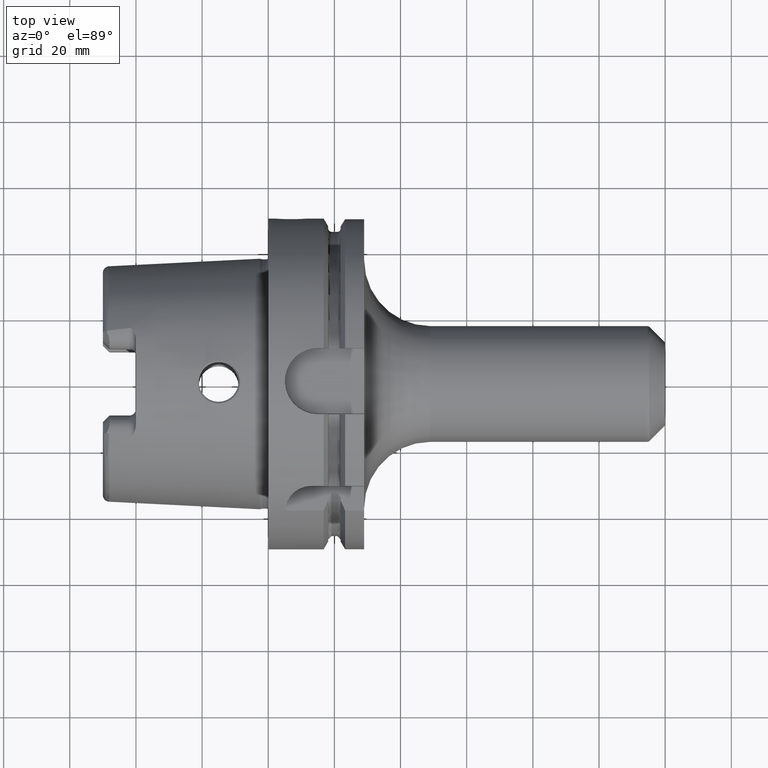
[diagram: clean part render]
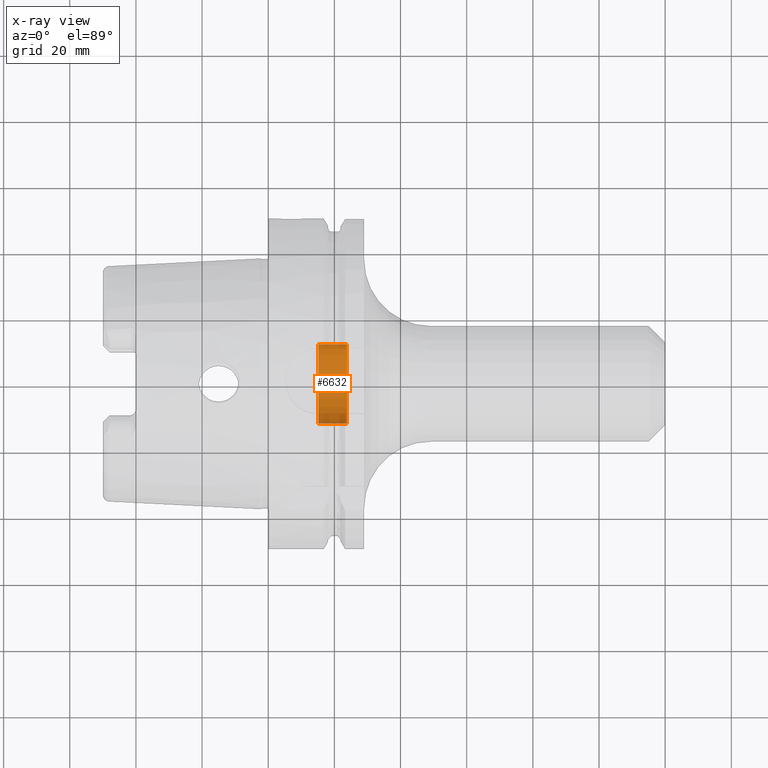
[diagram: x-ray — body ghosted, one internal face saturated and labeled with its STEP entity id]
A machine part, top view, then the same camera in x-ray: the body is ghosted and one INTERNAL B-rep face — a face not visible from any outside direction — is saturated and labeled: STEP entity #6632.
In plain terms, the highlighted cylindrical surface (partial cylindrical patch) has radius 12 mm, axis along (1, 0, 0).
Its self-contained STEP definition (entity closure, byte-faithful):
#6545=CARTESIAN_POINT('',(1.51625E1,0.E0,0.E0));
#6546=DIRECTION('',(1.E0,0.E0,0.E0));
#6547=DIRECTION('',(0.E0,-1.E0,0.E0));
#6548=AXIS2_PLACEMENT_3D('',#6545,#6546,#6547);
#6550=CARTESIAN_POINT('',(2.385262794416E1,0.E0,0.E0));
#6551=DIRECTION('',(-1.E0,0.E0,0.E0));
#6552=DIRECTION('',(0.E0,1.E0,0.E0));
#6553=AXIS2_PLACEMENT_3D('',#6550,#6551,#6552);
#6570=DIRECTION('',(-1.E0,0.E0,0.E0));
#6571=VECTOR('',#6570,8.690127944163E0);
#6572=CARTESIAN_POINT('',(2.385262794416E1,-1.2E1,0.E0));
#6573=LINE('',#6572,#6571);
#6579=DIRECTION('',(-1.E0,0.E0,0.E0));
#6580=VECTOR('',#6579,8.690127944163E0);
#6581=CARTESIAN_POINT('',(2.385262794416E1,1.2E1,0.E0));
#6582=LINE('',#6581,#6580);
#6605=CARTESIAN_POINT('',(1.51625E1,-1.2E1,0.E0));
#6606=CARTESIAN_POINT('',(1.51625E1,1.2E1,0.E0));
#6607=VERTEX_POINT('',#6605);
#6608=VERTEX_POINT('',#6606);
#6609=CARTESIAN_POINT('',(2.385262794416E1,-1.2E1,0.E0));
#6610=CARTESIAN_POINT('',(2.385262794416E1,1.2E1,0.E0));
#6611=VERTEX_POINT('',#6609);
#6612=VERTEX_POINT('',#6610);
#6617=CARTESIAN_POINT('',(-4.847666062263E0,0.E0,0.E0));
#6618=DIRECTION('',(1.E0,0.E0,0.E0));
#6619=DIRECTION('',(0.E0,-1.E0,0.E0));
#6620=AXIS2_PLACEMENT_3D('',#6617,#6618,#6619);
#6621=CYLINDRICAL_SURFACE('',#6620,1.2E1);
#6623=ORIENTED_EDGE('',*,*,#6622,.T.);
#6625=ORIENTED_EDGE('',*,*,#6624,.F.);
#6627=ORIENTED_EDGE('',*,*,#6626,.T.);
#6629=ORIENTED_EDGE('',*,*,#6628,.T.);
#6630=EDGE_LOOP('',(#6623,#6625,#6627,#6629));
#6631=FACE_OUTER_BOUND('',#6630,.F.);
#6632=ADVANCED_FACE('',(#6631),#6621,.F.);
#6549=CIRCLE('',#6548,1.2E1);
#6554=CIRCLE('',#6553,1.2E1);
#6622=EDGE_CURVE('',#6607,#6608,#6549,.T.);
#6624=EDGE_CURVE('',#6612,#6608,#6582,.T.);
#6626=EDGE_CURVE('',#6612,#6611,#6554,.T.);
#6628=EDGE_CURVE('',#6611,#6607,#6573,.T.);